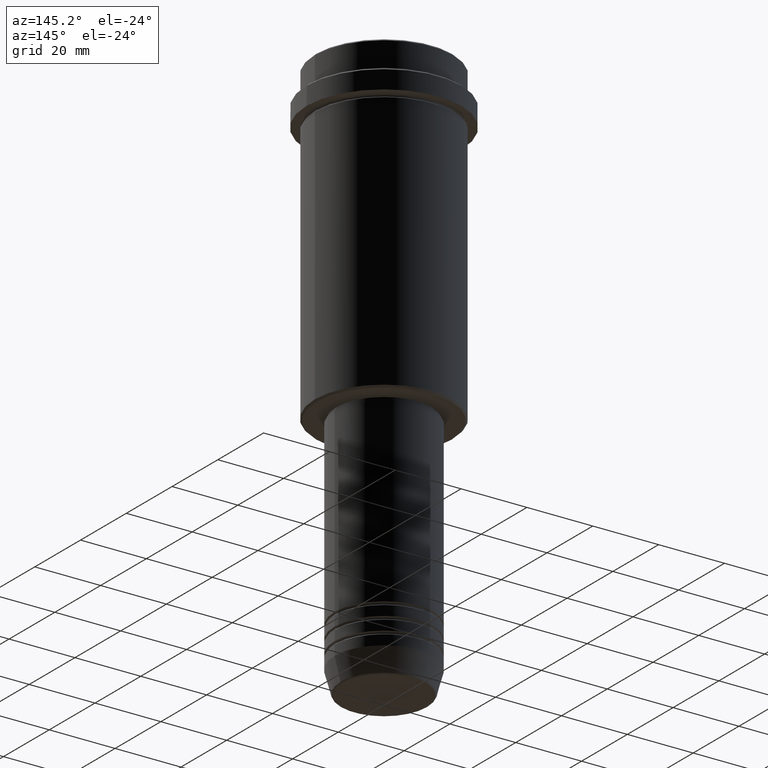
[diagram: clean part render]
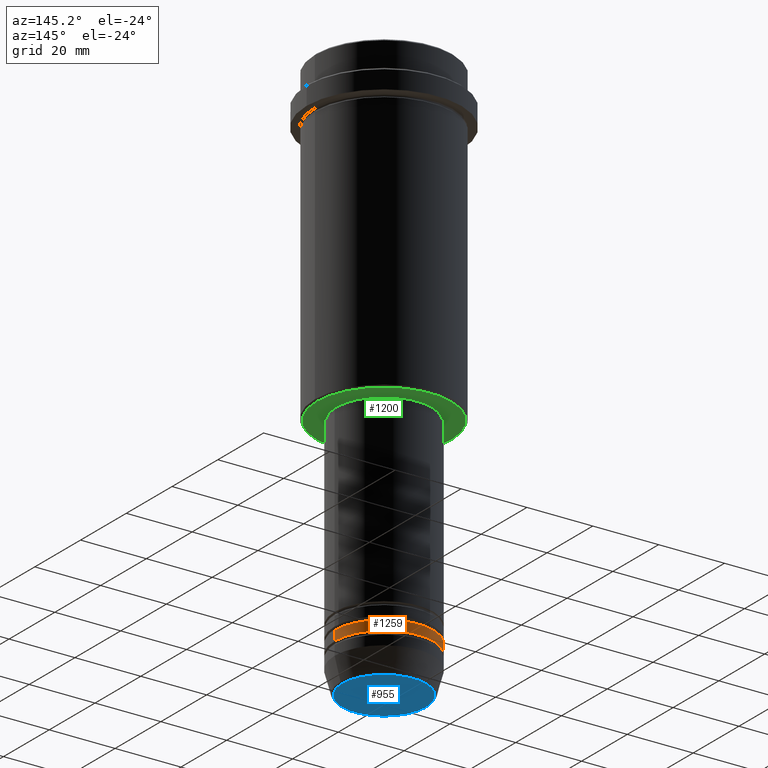
[diagram: same view with three faces highlighted in distinct colors, each labeled with its STEP entity id]
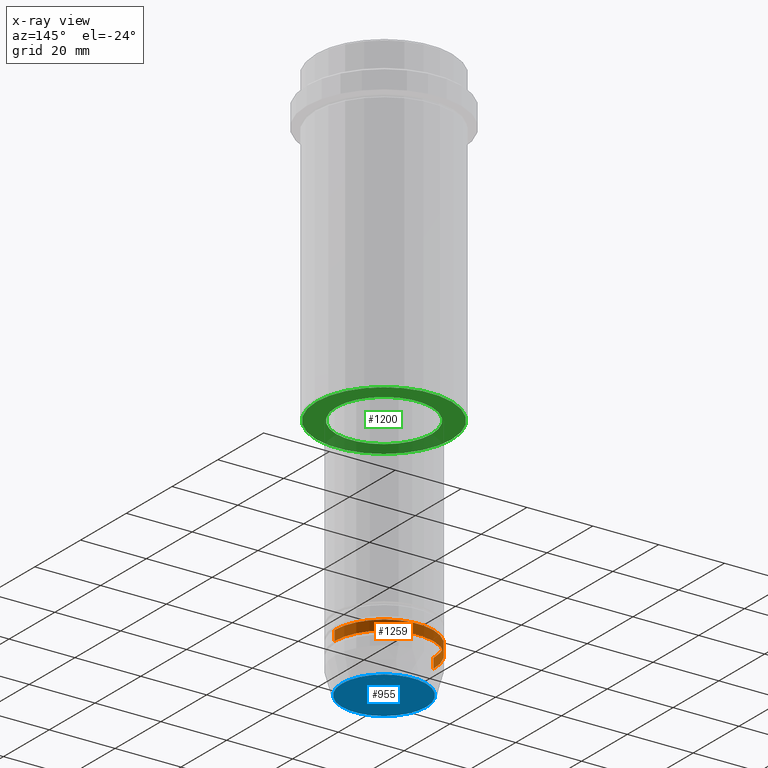
[diagram: x-ray of the same camera — body ghosted, the three highlighted faces saturated]
A machine part, auxiliary view with three faces highlighted in distinct colors.
The next image is the same camera in x-ray (body ghosted, the three faces saturated) — at least one of them is partly hidden behind the body in this view.
Their STEP definitions:

[orange] entity #1259 — the highlighted cylindrical surface (partial cylindrical patch) has radius 15 mm, axis along (-0, -0, 1).
#10 = CIRCLE ( 'NONE', #731, 15.00000000000000000 ) ;
#19 = DIRECTION ( 'NONE',  ( 1.000000000000000000, 0.000000000000000000, 0.000000000000000000 ) ) ;
#29 = DIRECTION ( 'NONE',  ( -0.000000000000000000, -0.000000000000000000, 1.000000000000000000 ) ) ;
#93 = CARTESIAN_POINT ( 'NONE',  ( 0.000000000000000000, 0.000000000000000000, 0.000000000000000000 ) ) ;
#116 = DIRECTION ( 'NONE',  ( 1.000000000000000000, 0.000000000000000000, 0.000000000000000000 ) ) ;
#227 = CARTESIAN_POINT ( 'NONE',  ( 0.000000000000000000, 0.000000000000000000, -155.9999999999999147 ) ) ;
#258 = ORIENTED_EDGE ( 'NONE', *, *, #688, .T. ) ;
#288 = ORIENTED_EDGE ( 'NONE', *, *, #712, .F. ) ;
#311 = DIRECTION ( 'NONE',  ( 1.000000000000000000, 0.000000000000000000, 0.000000000000000000 ) ) ;
#407 = DIRECTION ( 'NONE',  ( -0.000000000000000000, -0.000000000000000000, 1.000000000000000000 ) ) ;
#462 = CARTESIAN_POINT ( 'NONE',  ( -15.00000000000000000, 1.836970198721029589E-15, -155.9999999999999147 ) ) ;
#516 = FACE_OUTER_BOUND ( 'NONE', #665, .T. ) ;
#519 = VERTEX_POINT ( 'NONE', #462 ) ;
#525 = CARTESIAN_POINT ( 'NONE',  ( 15.00000000000000000, 0.000000000000000000, -155.9999999999999147 ) ) ;
#600 = LINE ( 'NONE', #1033, #1044 ) ;
#665 = EDGE_LOOP ( 'NONE', ( #1355, #258, #1392, #288 ) ) ;
#688 = EDGE_CURVE ( 'NONE', #796, #519, #600, .T. ) ;
#712 = EDGE_CURVE ( 'NONE', #1005, #1190, #834, .T. ) ;
#729 = CARTESIAN_POINT ( 'NONE',  ( 15.00000000000000000, 0.000000000000000000, 0.000000000000000000 ) ) ;
#731 = AXIS2_PLACEMENT_3D ( 'NONE', #1015, #29, #116 ) ;
#796 = VERTEX_POINT ( 'NONE', #1018 ) ;
#834 = LINE ( 'NONE', #729, #1223 ) ;
#845 = AXIS2_PLACEMENT_3D ( 'NONE', #93, #980, #311 ) ;
#972 = EDGE_CURVE ( 'NONE', #1005, #796, #10, .T. ) ;
#980 = DIRECTION ( 'NONE',  ( -0.000000000000000000, -0.000000000000000000, 1.000000000000000000 ) ) ;
#1005 = VERTEX_POINT ( 'NONE', #1308 ) ;
#1015 = CARTESIAN_POINT ( 'NONE',  ( 0.000000000000000000, 0.000000000000000000, -158.9999999999999147 ) ) ;
#1018 = CARTESIAN_POINT ( 'NONE',  ( -15.00000000000000000, 1.836970198721029589E-15, -158.9999999999999147 ) ) ;
#1033 = CARTESIAN_POINT ( 'NONE',  ( -15.00000000000000000, 1.836970198721029589E-15, 0.000000000000000000 ) ) ;
#1044 = VECTOR ( 'NONE', #1378, 1000.000000000000000 ) ;
#1072 = AXIS2_PLACEMENT_3D ( 'NONE', #227, #1116, #19 ) ;
#1116 = DIRECTION ( 'NONE',  ( -0.000000000000000000, -0.000000000000000000, 1.000000000000000000 ) ) ;
#1190 = VERTEX_POINT ( 'NONE', #525 ) ;
#1223 = VECTOR ( 'NONE', #407, 1000.000000000000000 ) ;
#1259 = ADVANCED_FACE ( 'NONE', ( #516 ), #1291, .T. ) ;
#1291 = CYLINDRICAL_SURFACE ( 'NONE', #845, 15.00000000000000000 ) ;
#1308 = CARTESIAN_POINT ( 'NONE',  ( 15.00000000000000000, 0.000000000000000000, -158.9999999999999147 ) ) ;
#1355 = ORIENTED_EDGE ( 'NONE', *, *, #972, .T. ) ;
#1365 = CIRCLE ( 'NONE', #1072, 15.00000000000000000 ) ;
#1378 = DIRECTION ( 'NONE',  ( -0.000000000000000000, -0.000000000000000000, 1.000000000000000000 ) ) ;
#1385 = EDGE_CURVE ( 'NONE', #1190, #519, #1365, .T. ) ;
#1392 = ORIENTED_EDGE ( 'NONE', *, *, #1385, .F. ) ;

[blue] entity #955 — the highlighted planar face has unit normal (0, -0, 1).
#6 = EDGE_LOOP ( 'NONE', ( #722, #112 ) ) ;
#79 = DIRECTION ( 'NONE',  ( 1.000000000000000000, 0.000000000000000000, 0.000000000000000000 ) ) ;
#112 = ORIENTED_EDGE ( 'NONE', *, *, #1345, .T. ) ;
#222 = DIRECTION ( 'NONE',  ( 1.000000000000000000, 0.000000000000000000, 0.000000000000000000 ) ) ;
#319 = CIRCLE ( 'NONE', #889, 12.74069215899266538 ) ;
#447 = CARTESIAN_POINT ( 'NONE',  ( 0.000000000000000000, 0.000000000000000000, -169.9999999999999716 ) ) ;
#624 = CARTESIAN_POINT ( 'NONE',  ( 0.000000000000000000, 0.000000000000000000, -169.9999999999999716 ) ) ;
#722 = ORIENTED_EDGE ( 'NONE', *, *, #1195, .T. ) ;
#826 = CARTESIAN_POINT ( 'NONE',  ( 12.74069215899266538, 0.000000000000000000, -169.9999999999999716 ) ) ;
#886 = DIRECTION ( 'NONE',  ( 0.000000000000000000, -0.000000000000000000, 1.000000000000000000 ) ) ;
#889 = AXIS2_PLACEMENT_3D ( 'NONE', #447, #1224, #222 ) ;
#955 = ADVANCED_FACE ( 'NONE', ( #1415 ), #1103, .F. ) ;
#962 = CIRCLE ( 'NONE', #1093, 12.74069215899266538 ) ;
#968 = DIRECTION ( 'NONE',  ( 0.000000000000000000, 0.000000000000000000, -1.000000000000000000 ) ) ;
#970 = VERTEX_POINT ( 'NONE', #1216 ) ;
#1048 = VERTEX_POINT ( 'NONE', #826 ) ;
#1093 = AXIS2_PLACEMENT_3D ( 'NONE', #624, #968, #79 ) ;
#1103 = PLANE ( 'NONE',  #1138 ) ;
#1138 = AXIS2_PLACEMENT_3D ( 'NONE', #1204, #886, #1319 ) ;
#1195 = EDGE_CURVE ( 'NONE', #1048, #970, #962, .T. ) ;
#1204 = CARTESIAN_POINT ( 'NONE',  ( 0.000000000000000000, 0.000000000000000000, -169.9999999999999716 ) ) ;
#1216 = CARTESIAN_POINT ( 'NONE',  ( -12.74069215899266538, 1.589857736427681824E-15, -169.9999999999999716 ) ) ;
#1224 = DIRECTION ( 'NONE',  ( 0.000000000000000000, 0.000000000000000000, -1.000000000000000000 ) ) ;
#1319 = DIRECTION ( 'NONE',  ( 1.000000000000000000, 0.000000000000000000, 0.000000000000000000 ) ) ;
#1345 = EDGE_CURVE ( 'NONE', #970, #1048, #319, .T. ) ;
#1415 = FACE_OUTER_BOUND ( 'NONE', #6, .T. ) ;

[green] entity #1200 — the highlighted planar face has unit normal (0, 0, -1).
#12 = CARTESIAN_POINT ( 'NONE',  ( 0.000000000000000000, 0.000000000000000000, -95.00000000000000000 ) ) ;
#68 = EDGE_LOOP ( 'NONE', ( #1372, #1219 ) ) ;
#74 = CARTESIAN_POINT ( 'NONE',  ( -14.49999999999999467, 1.775737858763661620E-15, -95.00000000000000000 ) ) ;
#87 = DIRECTION ( 'NONE',  ( 0.000000000000000000, 0.000000000000000000, -1.000000000000000000 ) ) ;
#144 = ORIENTED_EDGE ( 'NONE', *, *, #760, .T. ) ;
#182 = CARTESIAN_POINT ( 'NONE',  ( 0.000000000000000000, 0.000000000000000000, -95.00000000000000000 ) ) ;
#186 = VERTEX_POINT ( 'NONE', #284 ) ;
#194 = CARTESIAN_POINT ( 'NONE',  ( 0.000000000000000000, 0.000000000000000000, -95.00000000000000000 ) ) ;
#216 = AXIS2_PLACEMENT_3D ( 'NONE', #194, #87, #1178 ) ;
#276 = ORIENTED_EDGE ( 'NONE', *, *, #1237, .T. ) ;
#284 = CARTESIAN_POINT ( 'NONE',  ( 14.49999999999999467, 0.000000000000000000, -95.00000000000000000 ) ) ;
#295 = AXIS2_PLACEMENT_3D ( 'NONE', #745, #436, #638 ) ;
#300 = DIRECTION ( 'NONE',  ( -1.000000000000000000, 0.000000000000000000, -0.000000000000000000 ) ) ;
#341 = VERTEX_POINT ( 'NONE', #74 ) ;
#424 = CARTESIAN_POINT ( 'NONE',  ( 0.000000000000000000, 21.00000000000000000, -95.00000000000000000 ) ) ;
#436 = DIRECTION ( 'NONE',  ( -0.000000000000000000, -0.000000000000000000, 1.000000000000000000 ) ) ;
#497 = VERTEX_POINT ( 'NONE', #1099 ) ;
#612 = EDGE_CURVE ( 'NONE', #497, #633, #1405, .T. ) ;
#622 = CARTESIAN_POINT ( 'NONE',  ( 20.50000000000000355, 0.000000000000000000, -95.00000000000000000 ) ) ;
#633 = VERTEX_POINT ( 'NONE', #622 ) ;
#638 = DIRECTION ( 'NONE',  ( 1.000000000000000000, 0.000000000000000000, 0.000000000000000000 ) ) ;
#707 = CIRCLE ( 'NONE', #216, 20.50000000000000355 ) ;
#721 = EDGE_CURVE ( 'NONE', #633, #497, #707, .T. ) ;
#745 = CARTESIAN_POINT ( 'NONE',  ( 0.000000000000000000, 0.000000000000000000, -95.00000000000000000 ) ) ;
#750 = AXIS2_PLACEMENT_3D ( 'NONE', #12, #1338, #777 ) ;
#760 = EDGE_CURVE ( 'NONE', #186, #341, #1362, .T. ) ;
#777 = DIRECTION ( 'NONE',  ( 1.000000000000000000, 0.000000000000000000, 0.000000000000000000 ) ) ;
#846 = PLANE ( 'NONE',  #1203 ) ;
#963 = FACE_BOUND ( 'NONE', #1060, .T. ) ;
#1060 = EDGE_LOOP ( 'NONE', ( #144, #276 ) ) ;
#1062 = DIRECTION ( 'NONE',  ( 0.000000000000000000, 0.000000000000000000, -1.000000000000000000 ) ) ;
#1063 = DIRECTION ( 'NONE',  ( 0.000000000000000000, 0.000000000000000000, -1.000000000000000000 ) ) ;
#1099 = CARTESIAN_POINT ( 'NONE',  ( -20.50000000000000355, 2.541142108230758269E-15, -95.00000000000000000 ) ) ;
#1166 = DIRECTION ( 'NONE',  ( -1.000000000000000000, 0.000000000000000000, 0.000000000000000000 ) ) ;
#1178 = DIRECTION ( 'NONE',  ( -1.000000000000000000, 0.000000000000000000, 0.000000000000000000 ) ) ;
#1200 = ADVANCED_FACE ( 'NONE', ( #1395, #963 ), #846, .T. ) ;
#1203 = AXIS2_PLACEMENT_3D ( 'NONE', #424, #1063, #300 ) ;
#1219 = ORIENTED_EDGE ( 'NONE', *, *, #612, .T. ) ;
#1237 = EDGE_CURVE ( 'NONE', #341, #186, #1318, .T. ) ;
#1318 = CIRCLE ( 'NONE', #295, 14.49999999999999467 ) ;
#1338 = DIRECTION ( 'NONE',  ( -0.000000000000000000, -0.000000000000000000, 1.000000000000000000 ) ) ;
#1362 = CIRCLE ( 'NONE', #750, 14.49999999999999467 ) ;
#1372 = ORIENTED_EDGE ( 'NONE', *, *, #721, .T. ) ;
#1383 = AXIS2_PLACEMENT_3D ( 'NONE', #182, #1062, #1166 ) ;
#1395 = FACE_OUTER_BOUND ( 'NONE', #68, .T. ) ;
#1405 = CIRCLE ( 'NONE', #1383, 20.50000000000000355 ) ;